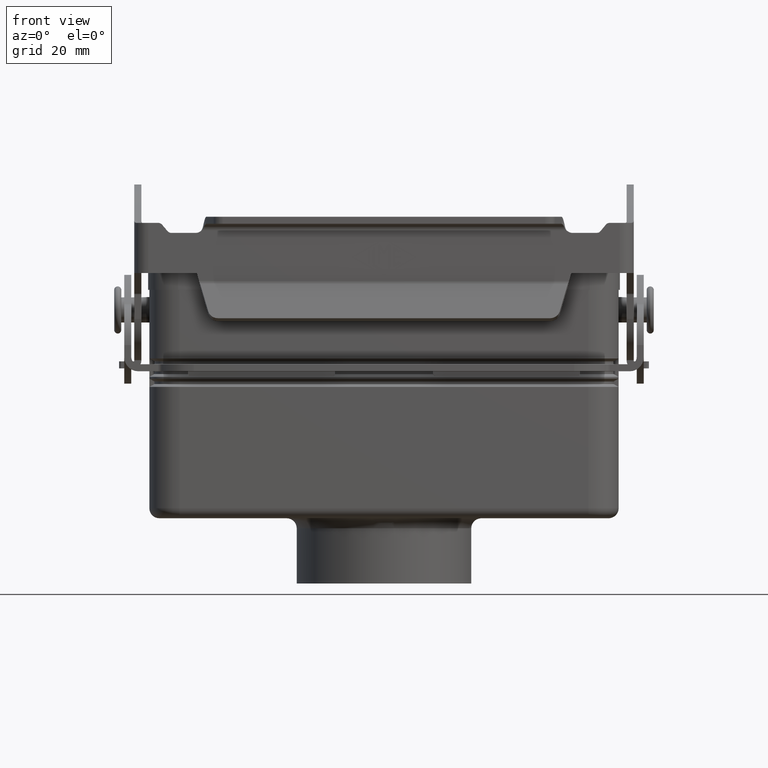
[diagram: clean part render]
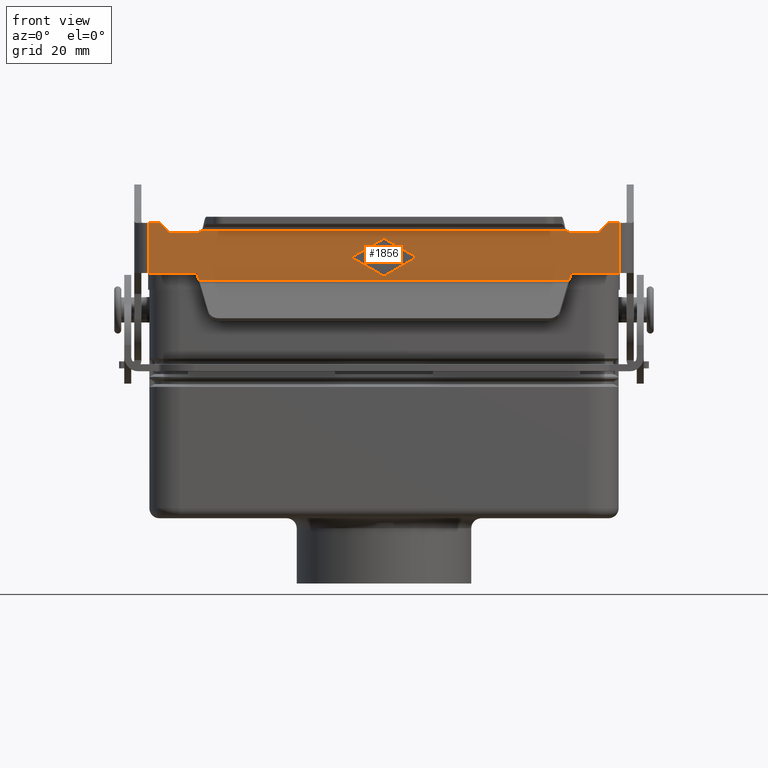
[diagram: same view with one face highlighted and labeled with its STEP entity id]
A machine part, front view. The second image highlights one B-rep face of the part: STEP entity #1856.
In plain terms, the highlighted face is a freeform B-spline surface patch.
Its self-contained STEP definition (entity closure, byte-faithful):
#831=CARTESIAN_POINT('',(-2.220446E-015,-28.166637302590757,14.250000000000004));
#832=VERTEX_POINT('',#831);
#833=CARTESIAN_POINT('',(6.499999999999996,-28.166637302590750,10.500000000000004));
#834=VERTEX_POINT('',#833);
#835=CARTESIAN_POINT('',(-2.220446E-015,-28.166637302590757,14.250000000000004));
#836=DIRECTION('',(0.866185586048600,9.468644E-016,-0.499722453489577));
#837=VECTOR('',#836,7.504165509901815);
#838=LINE('',#835,#837);
#839=EDGE_CURVE('',#832,#834,#838,.T.);
#871=CARTESIAN_POINT('',(-2.220446E-015,-28.166637302590750,6.750000000000005));
#872=VERTEX_POINT('',#871);
#873=CARTESIAN_POINT('',(6.499999999999996,-28.166637302590750,10.500000000000004));
#874=DIRECTION('',(-0.866185586048601,0.0,-0.499722453489577));
#875=VECTOR('',#874,7.504165509901815);
#876=LINE('',#873,#875);
#877=EDGE_CURVE('',#834,#872,#876,.T.);
#955=CARTESIAN_POINT('',(-6.500000000000002,-28.166637302590757,10.500000000000004));
#956=VERTEX_POINT('',#955);
#957=CARTESIAN_POINT('',(-2.220446E-015,-28.166637302590750,6.750000000000005));
#958=DIRECTION('',(-0.866185586048601,-9.468644E-016,0.499722453489577));
#959=VECTOR('',#958,7.504165509901816);
#960=LINE('',#957,#959);
#961=EDGE_CURVE('',#872,#956,#960,.T.);
#986=CARTESIAN_POINT('',(-6.500000000000002,-28.166637302590757,10.500000000000004));
#987=DIRECTION('',(0.866185586048600,0.0,0.499722453489577));
#988=VECTOR('',#987,7.504165509901817);
#989=LINE('',#986,#988);
#990=EDGE_CURVE('',#956,#832,#989,.T.);
#1659=CARTESIAN_POINT('',(46.950000000000017,-28.166637302590750,17.360985334995057));
#1660=CARTESIAN_POINT('',(46.950000000000010,-28.166637302590740,5.800808306497538));
#1661=CARTESIAN_POINT('',(-46.950000000000003,-28.166637302590772,17.360985334995139));
#1662=CARTESIAN_POINT('',(-46.950000000000010,-28.166637302590765,5.800808306497622));
#1663=B_SPLINE_SURFACE_WITH_KNOTS('',1,1,((#1659,#1661),(#1660,#1662)),.UNSPECIFIED.,.F.,.F.,.U.,(2,2),(2,2),(0.0,11.560177028497518),(0.0,93.900000000000020),.UNSPECIFIED.);
#1664=CARTESIAN_POINT('',(-36.873482775579035,-28.166637302590747,5.800808306497624));
#1665=VERTEX_POINT('',#1664);
#1666=CARTESIAN_POINT('',(36.873482775579035,-28.166637302590736,5.800808306497621));
#1667=VERTEX_POINT('',#1666);
#1668=CARTESIAN_POINT('',(-36.873482775579035,-28.166637302590747,5.800808306497624));
#1669=DIRECTION('',(1.0,0.0,0.0));
#1670=VECTOR('',#1669,73.746965551158070);
#1671=LINE('',#1668,#1670);
#1672=EDGE_CURVE('',#1665,#1667,#1671,.T.);
#1673=ORIENTED_EDGE('',*,*,#1672,.T.);
#1674=CARTESIAN_POINT('',(37.241881240836989,-28.166637302590743,7.175690096270690));
#1675=VERTEX_POINT('',#1674);
#1676=CARTESIAN_POINT('',(36.873482775579035,-28.166637302590736,5.800808306497621));
#1677=DIRECTION('',(0.258819045102523,-4.991932E-015,0.965925826289068));
#1678=VECTOR('',#1677,1.423382367831643);
#1679=LINE('',#1676,#1678);
#1680=EDGE_CURVE('',#1667,#1675,#1679,.T.);
#1681=ORIENTED_EDGE('',*,*,#1680,.T.);
#1682=CARTESIAN_POINT('',(37.483362697409255,-28.166637302590743,7.360985334995060));
#1683=VERTEX_POINT('',#1682);
#1684=CARTESIAN_POINT('',(37.483362697409255,-28.166637302590743,7.110985334995061));
#1685=DIRECTION('',(0.0,1.0,0.0));
#1686=DIRECTION('',(0.0,0.0,-1.0));
#1687=AXIS2_PLACEMENT_3D('',#1684,#1685,#1686);
#1688=CIRCLE('',#1687,0.250000000000000);
#1689=EDGE_CURVE('',#1675,#1683,#1688,.T.);
#1690=ORIENTED_EDGE('',*,*,#1689,.T.);
#1691=CARTESIAN_POINT('',(46.950000000000003,-28.166637302590743,7.360985334995052));
#1692=VERTEX_POINT('',#1691);
#1693=CARTESIAN_POINT('',(37.483362697409255,-28.166637302590743,7.360985334995060));
#1694=DIRECTION('',(1.0,0.0,0.0));
#1695=VECTOR('',#1694,9.466637302590748);
#1696=LINE('',#1693,#1695);
#1697=EDGE_CURVE('',#1683,#1692,#1696,.T.);
#1698=ORIENTED_EDGE('',*,*,#1697,.T.);
#1699=CARTESIAN_POINT('',(46.950000000000003,-28.166637302590750,17.360985334995050));
#1700=VERTEX_POINT('',#1699);
#1701=CARTESIAN_POINT('',(46.950000000000003,-28.166637302590743,7.360985334995052));
#1702=DIRECTION('',(0.0,0.0,1.0));
#1703=VECTOR('',#1702,9.999999999999998);
#1704=LINE('',#1701,#1703);
#1705=EDGE_CURVE('',#1692,#1700,#1704,.T.);
#1706=ORIENTED_EDGE('',*,*,#1705,.T.);
#1707=CARTESIAN_POINT('',(44.983362697409262,-28.166637302590750,17.360985334995053));
#1708=VERTEX_POINT('',#1707);
#1709=CARTESIAN_POINT('',(46.950000000000003,-28.166637302590750,17.360985334995050));
#1710=DIRECTION('',(-1.0,0.0,0.0));
#1711=VECTOR('',#1710,1.966637302590740);
#1712=LINE('',#1709,#1711);
#1713=EDGE_CURVE('',#1700,#1708,#1712,.T.);
#1714=ORIENTED_EDGE('',*,*,#1713,.T.);
#1715=CARTESIAN_POINT('',(44.217318254290291,-28.166637302590750,17.003772944681593));
#1716=VERTEX_POINT('',#1715);
#1717=CARTESIAN_POINT('',(44.983362697409262,-28.166637302590750,16.360985334995053));
#1718=DIRECTION('',(0.0,-1.0,0.0));
#1719=DIRECTION('',(0.0,0.0,1.0));
#1720=AXIS2_PLACEMENT_3D('',#1717,#1718,#1719);
#1721=CIRCLE('',#1720,1.0);
#1722=EDGE_CURVE('',#1708,#1716,#1721,.T.);
#1723=ORIENTED_EDGE('',*,*,#1722,.T.);
#1724=CARTESIAN_POINT('',(43.138592561863689,-28.166637302590750,15.718197725308521));
#1725=VERTEX_POINT('',#1724);
#1726=CARTESIAN_POINT('',(44.217318254290291,-28.166637302590750,17.003772944681593));
#1727=DIRECTION('',(-0.642787609686541,0.0,-0.766044443118976));
#1728=VECTOR('',#1727,1.678199262354556);
#1729=LINE('',#1726,#1728);
#1730=EDGE_CURVE('',#1716,#1725,#1729,.T.);
#1731=ORIENTED_EDGE('',*,*,#1730,.T.);
#1732=CARTESIAN_POINT('',(42.372548118744717,-28.166637302590750,15.360985334995053));
#1733=VERTEX_POINT('',#1732);
#1734=CARTESIAN_POINT('',(42.372548118744717,-28.166637302590750,16.360985334995057));
#1735=DIRECTION('',(0.0,1.0,0.0));
#1736=DIRECTION('',(0.0,0.0,1.0));
#1737=AXIS2_PLACEMENT_3D('',#1734,#1735,#1736);
#1738=CIRCLE('',#1737,1.0);
#1739=EDGE_CURVE('',#1725,#1733,#1738,.T.);
#1740=ORIENTED_EDGE('',*,*,#1739,.T.);
#1741=CARTESIAN_POINT('',(37.483362697409262,-28.166637302590750,15.360985334995060));
#1742=VERTEX_POINT('',#1741);
#1743=CARTESIAN_POINT('',(42.372548118744717,-28.166637302590750,15.360985334995053));
#1744=DIRECTION('',(-1.0,0.0,0.0));
#1745=VECTOR('',#1744,4.889185421335455);
#1746=LINE('',#1743,#1745);
#1747=EDGE_CURVE('',#1733,#1742,#1746,.T.);
#1748=ORIENTED_EDGE('',*,*,#1747,.T.);
#1749=CARTESIAN_POINT('',(36.445901726643541,-28.166637302590747,15.777622637585814));
#1750=VERTEX_POINT('',#1749);
#1751=CARTESIAN_POINT('',(37.483362697409262,-28.166637302590750,16.860985334995064));
#1752=DIRECTION('',(1.487417E-017,1.000000000000000,3.985521E-018));
#1753=DIRECTION('',(0.965925826289069,-1.539887E-017,0.258819045102520));
#1754=AXIS2_PLACEMENT_3D('',#1751,#1752,#1753);
#1755=CIRCLE('',#1754,1.500000000000000);
#1756=EDGE_CURVE('',#1742,#1750,#1755,.T.);
#1757=ORIENTED_EDGE('',*,*,#1756,.T.);
#1758=CARTESIAN_POINT('',(-36.445901726643555,-28.166637302590747,15.777622637585782));
#1759=VERTEX_POINT('',#1758);
#1760=CARTESIAN_POINT('',(36.445901726643541,-28.166637302590747,15.777622637585814));
#1761=DIRECTION('',(-1.0,0.0,0.0));
#1762=VECTOR('',#1761,72.891803453287096);
#1763=LINE('',#1760,#1762);
#1764=EDGE_CURVE('',#1750,#1759,#1763,.T.);
#1765=ORIENTED_EDGE('',*,*,#1764,.T.);
#1766=CARTESIAN_POINT('',(-37.483362697409255,-28.166637302590747,15.360985334995052));
#1767=VERTEX_POINT('',#1766);
#1768=CARTESIAN_POINT('',(-37.483362697409255,-28.166637302590747,16.860985334995053));
#1769=DIRECTION('',(-2.071704E-016,-1.0,5.551115E-017));
#1770=DIRECTION('',(-0.965925826289068,2.144786E-016,0.258819045102521));
#1771=AXIS2_PLACEMENT_3D('',#1768,#1769,#1770);
#1772=CIRCLE('',#1771,1.500000000000000);
#1773=EDGE_CURVE('',#1767,#1759,#1772,.T.);
#1774=ORIENTED_EDGE('',*,*,#1773,.F.);
#1775=CARTESIAN_POINT('',(-42.372548118744710,-28.166637302590747,15.360985334995050));
#1776=VERTEX_POINT('',#1775);
#1777=CARTESIAN_POINT('',(-42.372548118744710,-28.166637302590747,15.360985334995050));
#1778=DIRECTION('',(1.0,0.0,0.0));
#1779=VECTOR('',#1778,4.889185421335455);
#1780=LINE('',#1777,#1779);
#1781=EDGE_CURVE('',#1776,#1767,#1780,.T.);
#1782=ORIENTED_EDGE('',*,*,#1781,.F.);
#1783=CARTESIAN_POINT('',(-43.138592561863689,-28.166637302590747,15.718197725308515));
#1784=VERTEX_POINT('',#1783);
#1785=CARTESIAN_POINT('',(-42.372548118744710,-28.166637302590747,16.360985334995053));
#1786=DIRECTION('',(0.0,-1.0,0.0));
#1787=DIRECTION('',(0.0,0.0,1.0));
#1788=AXIS2_PLACEMENT_3D('',#1785,#1786,#1787);
#1789=CIRCLE('',#1788,1.0);
#1790=EDGE_CURVE('',#1784,#1776,#1789,.T.);
#1791=ORIENTED_EDGE('',*,*,#1790,.F.);
#1792=CARTESIAN_POINT('',(-44.217318254290284,-28.166637302590747,17.003772944681590));
#1793=VERTEX_POINT('',#1792);
#1794=CARTESIAN_POINT('',(-44.217318254290284,-28.166637302590747,17.003772944681590));
#1795=DIRECTION('',(0.642787609686538,0.0,-0.766044443118979));
#1796=VECTOR('',#1795,1.678199262354552);
#1797=LINE('',#1794,#1796);
#1798=EDGE_CURVE('',#1793,#1784,#1797,.T.);
#1799=ORIENTED_EDGE('',*,*,#1798,.F.);
#1800=CARTESIAN_POINT('',(-44.983362697409262,-28.166637302590747,17.360985334995050));
#1801=VERTEX_POINT('',#1800);
#1802=CARTESIAN_POINT('',(-44.983362697409262,-28.166637302590747,16.360985334995050));
#1803=DIRECTION('',(0.0,1.0,0.0));
#1804=DIRECTION('',(0.0,0.0,1.0));
#1805=AXIS2_PLACEMENT_3D('',#1802,#1803,#1804);
#1806=CIRCLE('',#1805,1.0);
#1807=EDGE_CURVE('',#1801,#1793,#1806,.T.);
#1808=ORIENTED_EDGE('',*,*,#1807,.F.);
#1809=CARTESIAN_POINT('',(-46.950000000000003,-28.166637302590747,17.360985334995050));
#1810=VERTEX_POINT('',#1809);
#1811=CARTESIAN_POINT('',(-46.950000000000003,-28.166637302590747,17.360985334995050));
#1812=DIRECTION('',(1.0,0.0,0.0));
#1813=VECTOR('',#1812,1.966637302590740);
#1814=LINE('',#1811,#1813);
#1815=EDGE_CURVE('',#1810,#1801,#1814,.T.);
#1816=ORIENTED_EDGE('',*,*,#1815,.F.);
#1817=CARTESIAN_POINT('',(-46.950000000000003,-28.166637302590747,7.360985334995051));
#1818=VERTEX_POINT('',#1817);
#1819=CARTESIAN_POINT('',(-46.950000000000003,-28.166637302590747,17.360985334995050));
#1820=DIRECTION('',(0.0,0.0,-1.0));
#1821=VECTOR('',#1820,10.0);
#1822=LINE('',#1819,#1821);
#1823=EDGE_CURVE('',#1810,#1818,#1822,.T.);
#1824=ORIENTED_EDGE('',*,*,#1823,.T.);
#1825=CARTESIAN_POINT('',(-37.483362697409255,-28.166637302590747,7.360985334995051));
#1826=VERTEX_POINT('',#1825);
#1827=CARTESIAN_POINT('',(-37.483362697409255,-28.166637302590747,7.360985334995051));
#1828=DIRECTION('',(-1.0,0.0,0.0));
#1829=VECTOR('',#1828,9.466637302590748);
#1830=LINE('',#1827,#1829);
#1831=EDGE_CURVE('',#1826,#1818,#1830,.T.);
#1832=ORIENTED_EDGE('',*,*,#1831,.F.);
#1833=CARTESIAN_POINT('',(-37.241881240836989,-28.166637302590747,7.175690096270681));
#1834=VERTEX_POINT('',#1833);
#1835=CARTESIAN_POINT('',(-37.483362697409255,-28.166637302590747,7.110985334995053));
#1836=DIRECTION('',(0.0,-1.0,0.0));
#1837=DIRECTION('',(0.0,0.0,-1.0));
#1838=AXIS2_PLACEMENT_3D('',#1835,#1836,#1837);
#1839=CIRCLE('',#1838,0.250000000000000);
#1840=EDGE_CURVE('',#1834,#1826,#1839,.T.);
#1841=ORIENTED_EDGE('',*,*,#1840,.F.);
#1842=CARTESIAN_POINT('',(-36.873482775579035,-28.166637302590747,5.800808306497624));
#1843=DIRECTION('',(-0.258819045102525,0.0,0.965925826289067));
#1844=VECTOR('',#1843,1.423382367831631);
#1845=LINE('',#1842,#1844);
#1846=EDGE_CURVE('',#1665,#1834,#1845,.T.);
#1847=ORIENTED_EDGE('',*,*,#1846,.F.);
#1848=EDGE_LOOP('',(#1673,#1681,#1690,#1698,#1706,#1714,#1723,#1731,#1740,#1748,#1757,#1765,#1774,#1782,#1791,#1799,#1808,#1816,#1824,#1832,#1841,#1847));
#1849=FACE_OUTER_BOUND('',#1848,.T.);
#1850=ORIENTED_EDGE('',*,*,#961,.T.);
#1851=ORIENTED_EDGE('',*,*,#990,.T.);
#1852=ORIENTED_EDGE('',*,*,#839,.T.);
#1853=ORIENTED_EDGE('',*,*,#877,.T.);
#1854=EDGE_LOOP('',(#1850,#1851,#1852,#1853));
#1855=FACE_BOUND('',#1854,.T.);
#1856=ADVANCED_FACE('',(#1849,#1855),#1663,.F.);